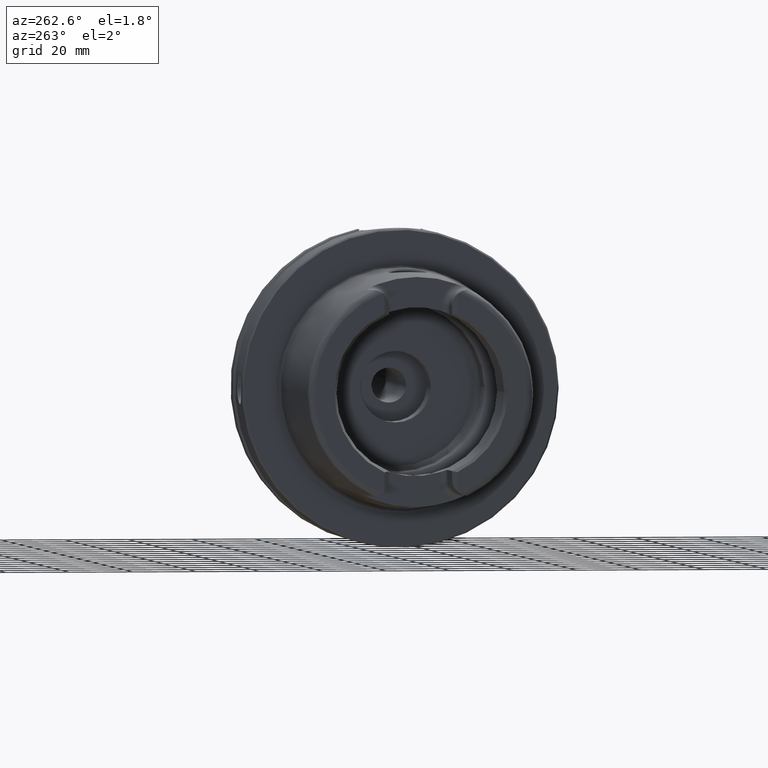
[diagram: clean part render]
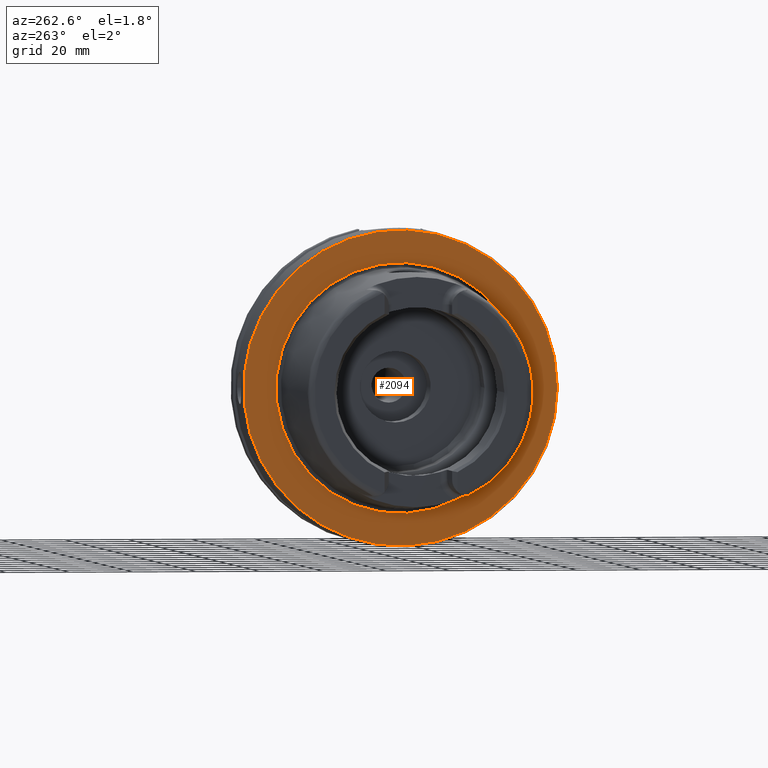
[diagram: same view with one face highlighted and labeled with its STEP entity id]
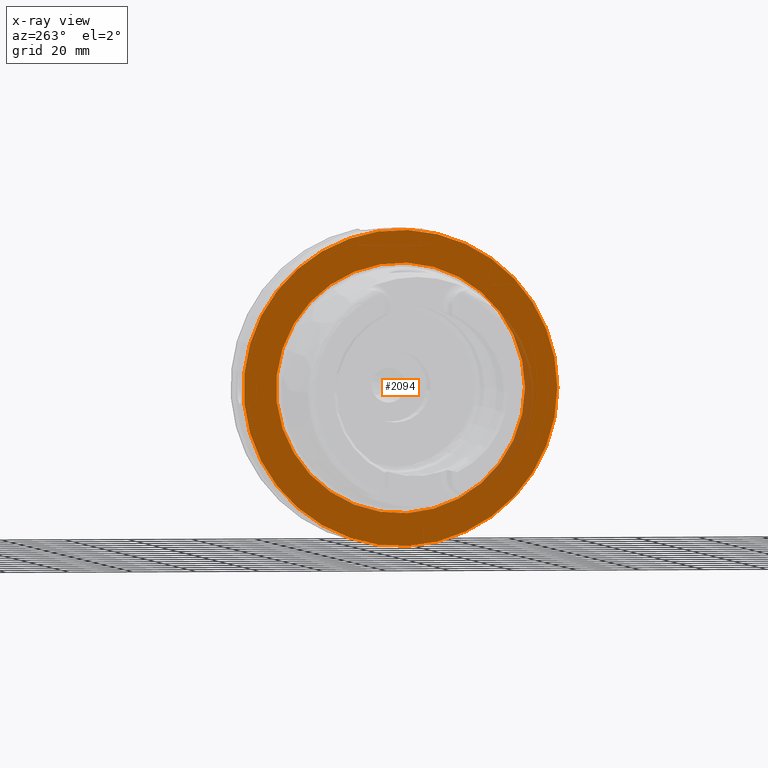
[diagram: x-ray of the same camera — body ghosted, the highlighted face saturated]
A machine part, auxiliary view. The second image highlights one B-rep face of the part: STEP entity #2094.
The next image is the same camera in x-ray: the body ghosted, the highlighted face saturated — about 5% of this face is hidden behind the body in this view.
In plain terms, the highlighted planar face has unit normal (-1, 0, 0).
Its self-contained STEP definition (entity closure, byte-faithful):
#97=FACE_BOUND('',#451,.T.);
#133=PLANE('',#2368);
#318=FACE_OUTER_BOUND('',#450,.T.);
#450=EDGE_LOOP('',(#1920));
#451=EDGE_LOOP('',(#1921));
#797=CIRCLE('',#2367,39.2747800249997);
#798=CIRCLE('',#2369,49.5);
#1011=VERTEX_POINT('',#4514);
#1012=VERTEX_POINT('',#4518);
#1319=EDGE_CURVE('',#1011,#1011,#797,.T.);
#1320=EDGE_CURVE('',#1012,#1012,#798,.T.);
#1920=ORIENTED_EDGE('',*,*,#1320,.F.);
#1921=ORIENTED_EDGE('',*,*,#1319,.T.);
#2094=ADVANCED_FACE('',(#318,#97),#133,.T.);
#2367=AXIS2_PLACEMENT_3D('',#4516,#2972,#2973);
#2368=AXIS2_PLACEMENT_3D('',#4517,#2974,#2975);
#2369=AXIS2_PLACEMENT_3D('',#4519,#2976,#2977);
#2972=DIRECTION('center_axis',(1.,0.,0.));
#2973=DIRECTION('ref_axis',(0.,0.,-1.));
#2974=DIRECTION('center_axis',(-1.,0.,0.));
#2975=DIRECTION('ref_axis',(0.,0.,1.));
#2976=DIRECTION('center_axis',(1.,0.,0.));
#2977=DIRECTION('ref_axis',(0.,0.,-1.));
#4514=CARTESIAN_POINT('',(-1.04950770296597E-15,-39.2747800249997,-4.80977336448322E-15));
#4516=CARTESIAN_POINT('Origin',(0.,0.,0.));
#4517=CARTESIAN_POINT('Origin',(0.,49.5,0.));
#4518=CARTESIAN_POINT('',(1.28369537222284E-15,-49.5,-6.0620016557794E-15));
#4519=CARTESIAN_POINT('Origin',(0.,0.,0.));